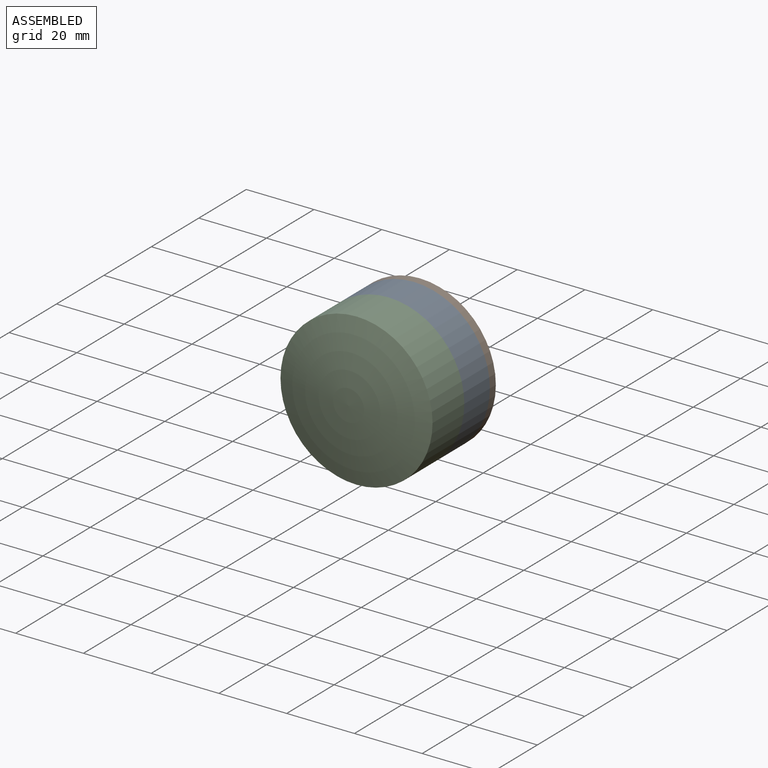
[diagram: assembled view]
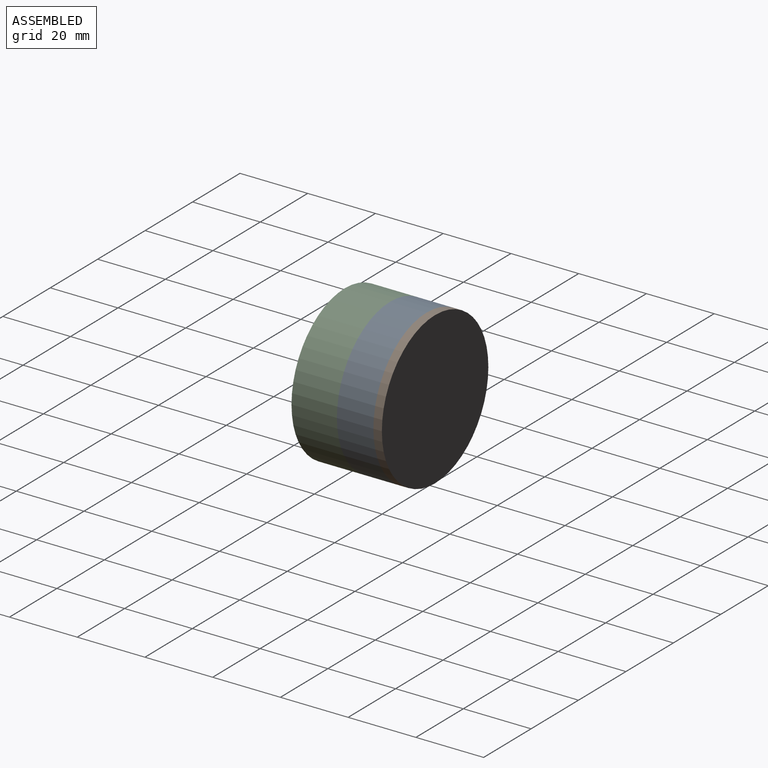
[diagram: assembled view, second angle]
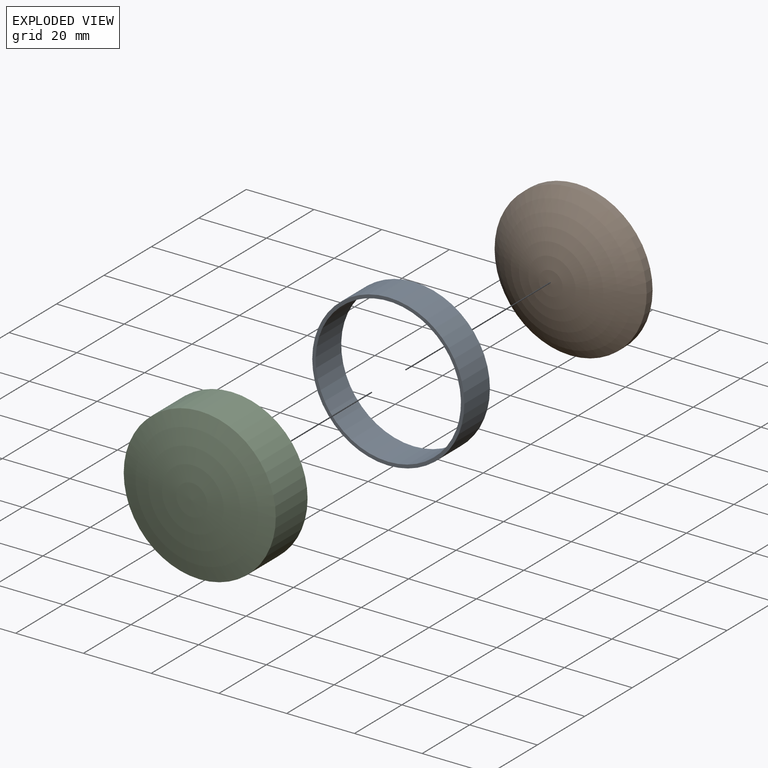
[diagram: exploded view]
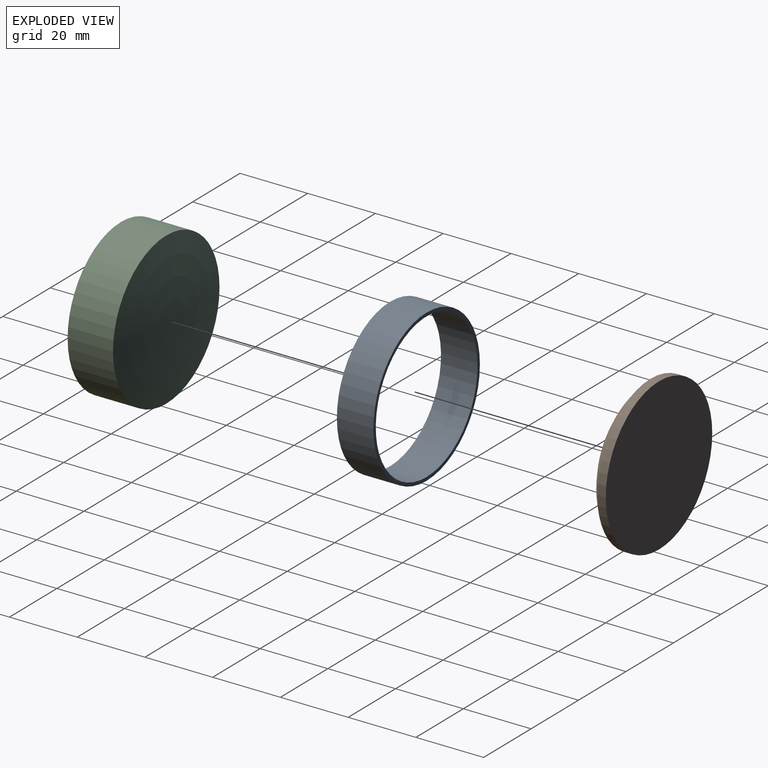
[diagram: exploded view, second angle]
ASSEMBLY  parts=3 mates=2
PART A: 4 faces, bbox 44.9x10.8x44.9 mm
  f0: cylinder r=21.45mm len=42.9mm, axis (0,1,0), area 1452.9mm2, adj f2,f3
  f1: cylinder r=22.45mm len=44.9mm, axis (0,1,0), area 1520.6mm2, adj f2,f3
  f2: plane 44.9x44.9mm, normal (0,-1,0), area 137.9mm2, adj f0,f1
  f3: plane 44.9x44.9mm, normal (0,1,0), area 137.9mm2, adj f0,f1
PART B: 3 faces, bbox 44.9x11.1x44.9 mm
  f0: plane 44.9x44.9mm, normal (0,1,0), area 1583.4mm2, adj f1
  f1: cylinder r=22.45mm len=44.9mm, axis (0,1,0), area 352.6mm2, adj f0,f2
  f2: sphere r=33.57mm, area 1816.3mm2, adj f1
PART C: 3 faces, bbox 44.9x18.7x44.9 mm
  f0: cylinder r=22.45mm len=44.9mm, axis (0,-1,0), area 1890.2mm2, adj f1,f2
  f1: sphere r=73.75mm, area 1621.9mm2, adj f0
  f2: sphere r=142.46mm, area 1593.3mm2, adj f0
PLACE A t=(0.08,19.21,6.01)mm
PLACE B t=(0.08,19.21,6.01)mm
PLACE C t=(0.08,1.73,6.01)mm
MATE fastened B.f1 <-> A.f0  axis (0,1,0) through (0.08,19.21,6.01)mm
MATE fastened C.f0 <-> A.f0  axis (0,-1,0) through (0.08,8.43,6.01)mm
